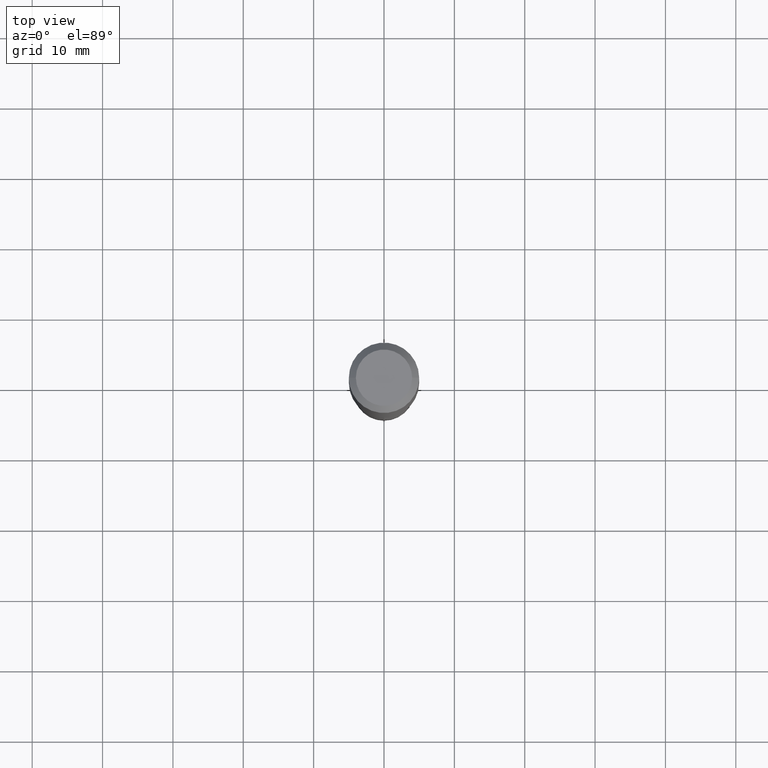
[diagram: clean part render]
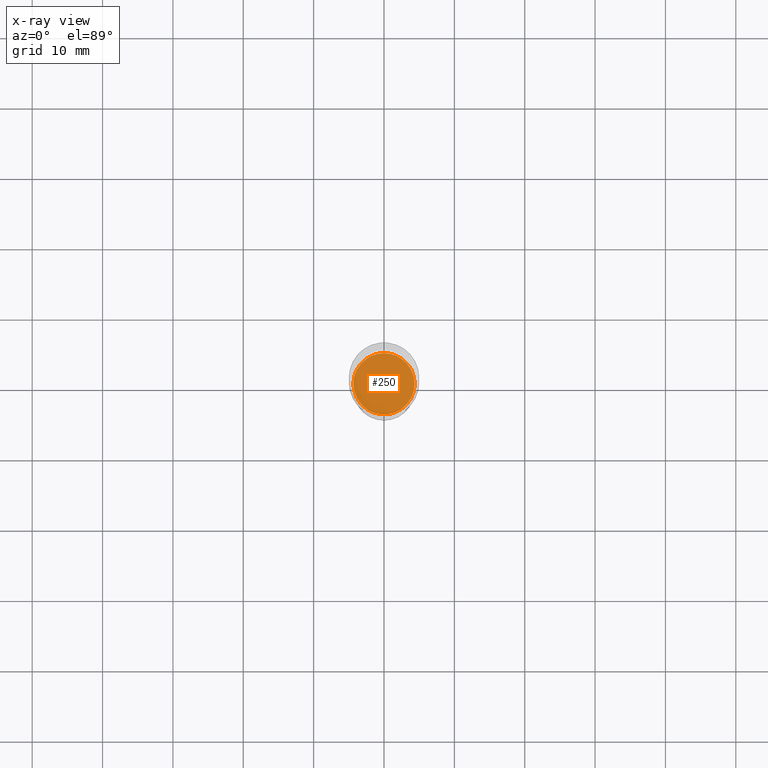
[diagram: x-ray — body ghosted, one internal face saturated and labeled with its STEP entity id]
A machine part, top view, then the same camera in x-ray: the body is ghosted and one INTERNAL B-rep face — a face not visible from any outside direction — is saturated and labeled: STEP entity #250.
In plain terms, the highlighted planar face has unit normal (-0, 0, 1).
Its self-contained STEP definition (entity closure, byte-faithful):
#16 = FACE_OUTER_BOUND ( 'NONE', #295, .T. ) ;
#31 = CARTESIAN_POINT ( 'NONE',  ( 4.883112112190480497E-29, -6.971789937401992754E-15, -1.996799999999999908 ) ) ;
#48 = AXIS2_PLACEMENT_3D ( 'NONE', #471, #66, #478 ) ;
#66 = DIRECTION ( 'NONE',  ( -2.445468806185136597E-29, 3.491481338843145583E-15, 1.000000000000000000 ) ) ;
#93 = VERTEX_POINT ( 'NONE', #165 ) ;
#108 = AXIS2_PLACEMENT_3D ( 'NONE', #31, #327, #475 ) ;
#131 = EDGE_CURVE ( 'NONE', #354, #93, #189, .T. ) ;
#165 = CARTESIAN_POINT ( 'NONE',  ( 0.1713999999999999690, -8.168669740357418199E-15, -1.996799999999999908 ) ) ;
#170 = CARTESIAN_POINT ( 'NONE',  ( 2.660723506269796897E-29, -1.015437691158448916E-14, -1.996799999999999908 ) ) ;
#189 = CIRCLE ( 'NONE', #48, 0.1713999999999999690 ) ;
#214 = EDGE_CURVE ( 'NONE', #93, #354, #402, .T. ) ;
#250 = ADVANCED_FACE ( 'NONE', ( #16 ), #349, .F. ) ;
#294 = ORIENTED_EDGE ( 'NONE', *, *, #131, .F. ) ;
#295 = EDGE_LOOP ( 'NONE', ( #432, #294 ) ) ;
#297 = CARTESIAN_POINT ( 'NONE',  ( -0.1713999999999999690, -5.751270461135069068E-15, -1.996799999999999908 ) ) ;
#315 = DIRECTION ( 'NONE',  ( -2.438088387897960049E-29, 3.491481338843145188E-15, 1.000000000000000000 ) ) ;
#327 = DIRECTION ( 'NONE',  ( -2.445468806185136597E-29, 3.491481338843145583E-15, 1.000000000000000000 ) ) ;
#349 = PLANE ( 'NONE',  #361 ) ;
#354 = VERTEX_POINT ( 'NONE', #297 ) ;
#361 = AXIS2_PLACEMENT_3D ( 'NONE', #170, #315, #467 ) ;
#402 = CIRCLE ( 'NONE', #108, 0.1713999999999999690 ) ;
#432 = ORIENTED_EDGE ( 'NONE', *, *, #214, .F. ) ;
#467 = DIRECTION ( 'NONE',  ( 1.000000000000000000, -6.982962677686265922E-15, 4.876176775795935793E-29 ) ) ;
#471 = CARTESIAN_POINT ( 'NONE',  ( 4.883112112190480497E-29, -6.971789937401992754E-15, -1.996799999999999908 ) ) ;
#475 = DIRECTION ( 'NONE',  ( 1.000000000000000000, -6.982962677686265133E-15, 0.000000000000000000 ) ) ;
#478 = DIRECTION ( 'NONE',  ( 1.000000000000000000, -6.982962677686265133E-15, 0.000000000000000000 ) ) ;